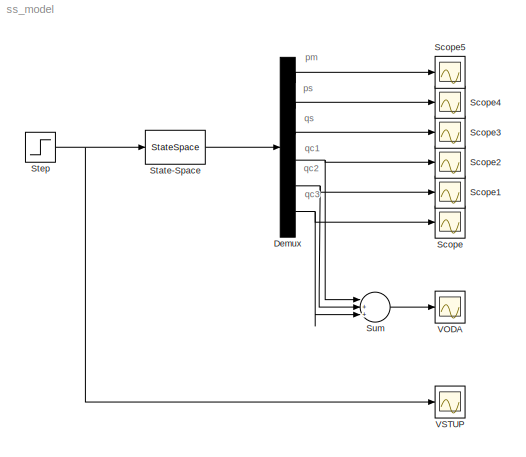
MODEL ss_model
KIND model
BLOCK [Demux] Demux
  DisplayOption = bar
  Outputs = 6
  Ports = [1, 6]
  SID = 7
BLOCK [Scope] Scope
  DataFormat = StructureWithTime
  Floating = off
  NumInputPorts = 1
  Ports = [1]
  SID = 3
  SampleTime = 0
  ZoomMode = yonly
BLOCK [Scope] Scope1
  DataFormat = StructureWithTime
  Floating = off
  NumInputPorts = 1
  Ports = [1]
  SID = 8
  SampleTime = 0
  SaveName = ScopeData1
  YMax = 140000
  YMin = 0
  ZoomMode = yonly
BLOCK [Scope] Scope2
  DataFormat = StructureWithTime
  Floating = off
  NumInputPorts = 1
  Ports = [1]
  SID = 9
  SampleTime = 0
  SaveName = ScopeData2
  ZoomMode = xonly
BLOCK [Scope] Scope3
  DataFormat = StructureWithTime
  Floating = off
  NumInputPorts = 1
  Ports = [1]
  SID = 10
  SampleTime = 0
  SaveName = ScopeData3
  ZoomMode = yonly
BLOCK [Scope] Scope4
  DataFormat = StructureWithTime
  Floating = off
  NumInputPorts = 1
  Ports = [1]
  SID = 11
  SampleTime = 0
  SaveName = ScopeData4
  ZoomMode = yonly
BLOCK [Scope] Scope5
  DataFormat = StructureWithTime
  Floating = off
  NumInputPorts = 1
  Ports = [1]
  SID = 12
  SampleTime = 0
  SaveName = ScopeData5
  ZoomMode = yonly
BLOCK [StateSpace] State-Space
  A = A
  B = B
  C = C
  D = D
  SID = 2
  X0 = x0
BLOCK [Step] Step
  After = 0
  Before = 1
  SID = 1
  SampleTime = 0
  Time = 230
BLOCK [Sum] Sum
  IconShape = round
  InputSameDT = off
  Inputs = |+++
  OutDataType = fixdt(1, 16)
  OutDataTypeMode = Inherit via internal rule
  OutDataTypeStr = Inherit: Inherit via internal rule
  OutScaling = 2^0
  Ports = [3, 1]
  SID = 13
  SaturateOnIntegerOverflow = off
BLOCK [Scope] VODA
  DataFormat = Array
  Floating = off
  NumInputPorts = 1
  Ports = [1]
  SID = 14
  SampleTime = 0
  SaveToWorkspace = on
  ZoomMode = xonly
BLOCK [Scope] VSTUP
  DataFormat = StructureWithTime
  Floating = off
  NumInputPorts = 1
  Ports = [1]
  SID = 15
  SampleTime = 0
  SaveName = ScopeData7
  ZoomMode = yonly
ANNOTATION (root): pm
ANNOTATION (root): ps
ANNOTATION (root): qc1
ANNOTATION (root): qc2
ANNOTATION (root): qc3
ANNOTATION (root): qs
LINE Demux:1 -> Scope5:1
LINE Demux:2 -> Scope4:1
LINE Demux:3 -> Scope3:1
NET Demux:4 -> Scope2:1, Sum:1
NET Demux:5 -> Scope1:1, Sum:2
NET Demux:6 -> Scope:1, Sum:3
LINE State-Space:1 -> Demux:1
NET Step:1 -> State-Space:1, VSTUP:1
LINE Sum:1 -> VODA:1
note: NET lines group one-source signal fan-out (src -> all destinations, sorted); 1:1 wires keep LINE
